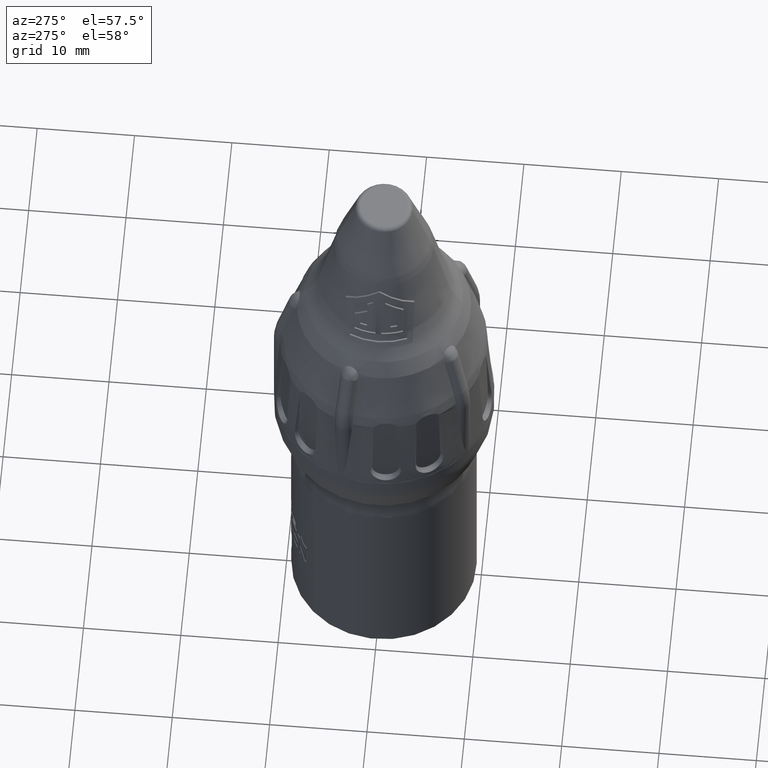
[diagram: clean part render]
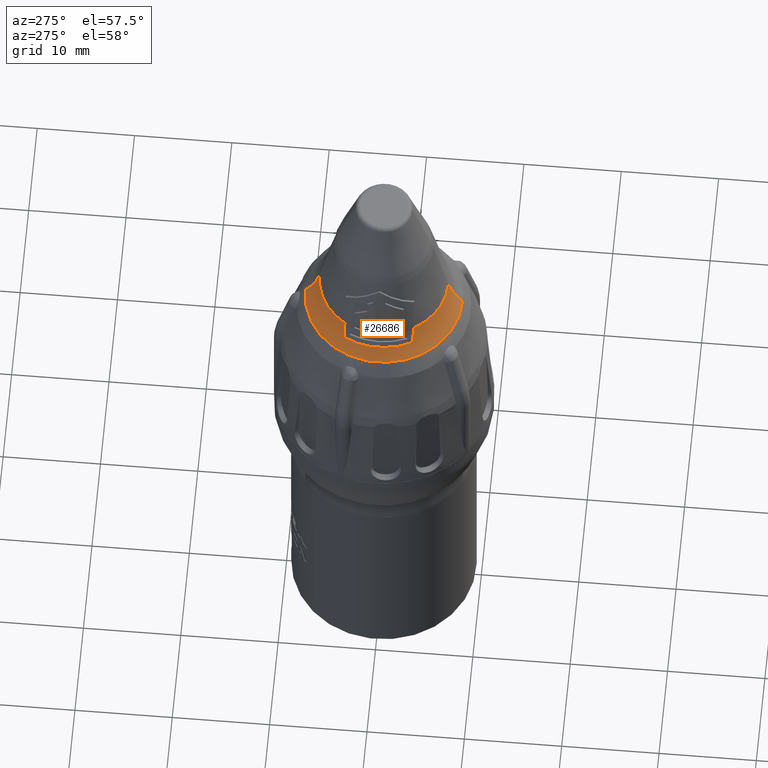
[diagram: same view with one face highlighted and labeled with its STEP entity id]
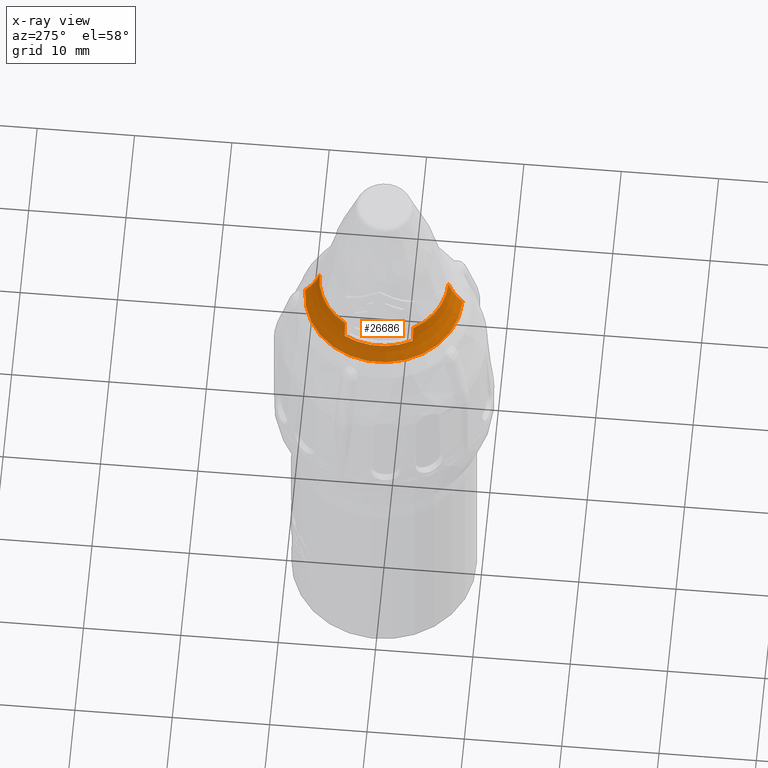
[diagram: x-ray of the same camera — body ghosted, the highlighted face saturated]
A machine part, auxiliary view. The second image highlights one B-rep face of the part: STEP entity #26686.
The next image is the same camera in x-ray: the body ghosted, the highlighted face saturated — about 0% of this face is hidden behind the body in this view.
In plain terms, the highlighted toroidal blend (fillet) surface has major radius 14.4259 mm and minor (blend) radius 8 mm.
Its self-contained STEP definition (entity closure, byte-faithful):
#7665=CARTESIAN_POINT('',(0.E0,0.E0,2.166134880403E1));
#7666=DIRECTION('',(0.E0,0.E0,1.E0));
#7667=DIRECTION('',(0.E0,1.E0,0.E0));
#7668=AXIS2_PLACEMENT_3D('',#7665,#7666,#7667);
#7758=CARTESIAN_POINT('',(0.E0,1.442591363185E1,2.652785568105E1));
#7759=DIRECTION('',(1.E0,0.E0,0.E0));
#7760=DIRECTION('',(0.E0,-9.753783760834E-1,-2.205380317971E-1));
#7761=AXIS2_PLACEMENT_3D('',#7758,#7759,#7760);
#7768=CARTESIAN_POINT('',(0.E0,-1.442591363185E1,2.652785568105E1));
#7769=DIRECTION('',(-1.E0,0.E0,0.E0));
#7770=DIRECTION('',(0.E0,9.753783760834E-1,-2.205380317971E-1));
#7771=AXIS2_PLACEMENT_3D('',#7768,#7769,#7770);
#8552=CARTESIAN_POINT('',(-5.615292740014E0,3.511568690406E0,2.476355142667E1));
#8554=CARTESIAN_POINT('',(0.E0,0.E0,2.476355142667E1));
#8555=DIRECTION('',(0.E0,0.E0,1.E0));
#8556=DIRECTION('',(0.E0,1.E0,0.E0));
#8557=AXIS2_PLACEMENT_3D('',#8554,#8555,#8556);
#8564=CARTESIAN_POINT('',(0.E0,0.E0,2.476355142667E1));
#8565=DIRECTION('',(0.E0,0.E0,1.E0));
#8566=DIRECTION('',(-8.481108291696E-1,-5.298188572006E-1,0.E0));
#8567=AXIS2_PLACEMENT_3D('',#8564,#8565,#8566);
#8569=CARTESIAN_POINT('',(-5.616941865481E0,-3.508930222062E0,
2.476355142667E1));
#8588=CARTESIAN_POINT('',(-6.201505676393E0,3.511568690406E0,2.325349876691E1));
#8589=CARTESIAN_POINT('',(-6.115243526614E0,3.511568690406E0,2.342083098080E1));
#8590=CARTESIAN_POINT('',(-5.957378756254E0,3.511568690406E0,2.375610000348E1));
#8591=CARTESIAN_POINT('',(-5.762381177469E0,3.511568690406E0,2.426085157272E1));
#8592=CARTESIAN_POINT('',(-5.659943991608E0,3.511568690406E0,2.459611561673E1));
#8593=CARTESIAN_POINT('',(-5.615292740014E0,3.511568690406E0,2.476355142667E1));
#8595=CARTESIAN_POINT('',(0.E0,0.E0,2.325349876691E1));
#8596=DIRECTION('',(0.E0,0.E0,1.E0));
#8597=DIRECTION('',(-8.701797015980E-1,4.927344994282E-1,0.E0));
#8598=AXIS2_PLACEMENT_3D('',#8595,#8596,#8597);
#8600=CARTESIAN_POINT('',(-5.616941865481E0,-3.508930222062E0,
2.476355142667E1));
#8601=CARTESIAN_POINT('',(-5.661582945757E0,-3.508930222062E0,
2.459610459559E1));
#8602=CARTESIAN_POINT('',(-5.763996192075E0,-3.508930222062E0,
2.426082621208E1));
#8603=CARTESIAN_POINT('',(-5.958943789147E0,-3.508930222062E0,
2.375607440225E1));
#8604=CARTESIAN_POINT('',(-6.116763088687E0,-3.508930222062E0,
2.342082027325E1));
#8605=CARTESIAN_POINT('',(-6.202998953609E0,-3.508930222062E0,
2.325349876691E1));
#13262=VERTEX_POINT('',#8552);
#13265=VERTEX_POINT('',#8569);
#13419=CARTESIAN_POINT('',(0.E0,6.622886623180E0,2.476355142667E1));
#13420=CARTESIAN_POINT('',(0.E0,8.076337991233E0,2.166134880403E1));
#13421=VERTEX_POINT('',#13419);
#13422=VERTEX_POINT('',#13420);
#13423=CARTESIAN_POINT('',(0.E0,-6.622886623180E0,2.476355142667E1));
#13424=CARTESIAN_POINT('',(0.E0,-8.076337991233E0,2.166134880403E1));
#13425=VERTEX_POINT('',#13423);
#13426=VERTEX_POINT('',#13424);
#13451=CARTESIAN_POINT('',(-6.201505676393E0,3.511568690406E0,
2.325349876691E1));
#13452=CARTESIAN_POINT('',(-6.202998953609E0,-3.508930222062E0,
2.325349876691E1));
#13453=VERTEX_POINT('',#13451);
#13454=VERTEX_POINT('',#13452);
#26670=CARTESIAN_POINT('',(0.E0,0.E0,2.652785568105E1));
#26671=DIRECTION('',(0.E0,0.E0,1.E0));
#26672=DIRECTION('',(0.E0,-1.E0,0.E0));
#26673=AXIS2_PLACEMENT_3D('',#26670,#26671,#26672);
#26674=TOROIDAL_SURFACE('',#26673,1.442591363185E1,8.E0);
#26675=ORIENTED_EDGE('',*,*,#26647,.T.);
#26676=ORIENTED_EDGE('',*,*,#26326,.F.);
#26678=ORIENTED_EDGE('',*,*,#26677,.T.);
#26679=ORIENTED_EDGE('',*,*,#26623,.F.);
#26680=ORIENTED_EDGE('',*,*,#26653,.T.);
#26681=ORIENTED_EDGE('',*,*,#25722,.T.);
#26682=ORIENTED_EDGE('',*,*,#25632,.F.);
#26683=ORIENTED_EDGE('',*,*,#25717,.F.);
#26684=EDGE_LOOP('',(#26675,#26676,#26678,#26679,#26680,#26681,#26682,#26683));
#26685=FACE_OUTER_BOUND('',#26684,.F.);
#7669=CIRCLE('',#7668,8.076337991233E0);
#7762=CIRCLE('',#7761,8.E0);
#7772=CIRCLE('',#7771,8.E0);
#8558=CIRCLE('',#8557,6.622886623180E0);
#8568=CIRCLE('',#8567,6.622886623180E0);
#8594=B_SPLINE_CURVE_WITH_KNOTS('',3,(#8588,#8589,#8590,#8591,#8592,#8593),
.UNSPECIFIED.,.F.,.F.,(4,1,1,4),(0.E0,3.333333333333E-1,6.666666666667E-1,1.E0),
.UNSPECIFIED.);
#8599=CIRCLE('',#8598,7.126695399817E0);
#8606=B_SPLINE_CURVE_WITH_KNOTS('',3,(#8600,#8601,#8602,#8603,#8604,#8605),
.UNSPECIFIED.,.F.,.F.,(4,1,1,4),(0.E0,3.333333333333E-1,6.666666666667E-1,1.E0),
.UNSPECIFIED.);
#25632=EDGE_CURVE('',#13422,#13426,#7669,.T.);
#25717=EDGE_CURVE('',#13421,#13422,#7762,.T.);
#25722=EDGE_CURVE('',#13425,#13426,#7772,.T.);
#26326=EDGE_CURVE('',#13453,#13262,#8594,.T.);
#26623=EDGE_CURVE('',#13265,#13454,#8606,.T.);
#26647=EDGE_CURVE('',#13421,#13262,#8558,.T.);
#26653=EDGE_CURVE('',#13265,#13425,#8568,.T.);
#26677=EDGE_CURVE('',#13453,#13454,#8599,.T.);
#26686=ADVANCED_FACE('',(#26685),#26674,.F.);